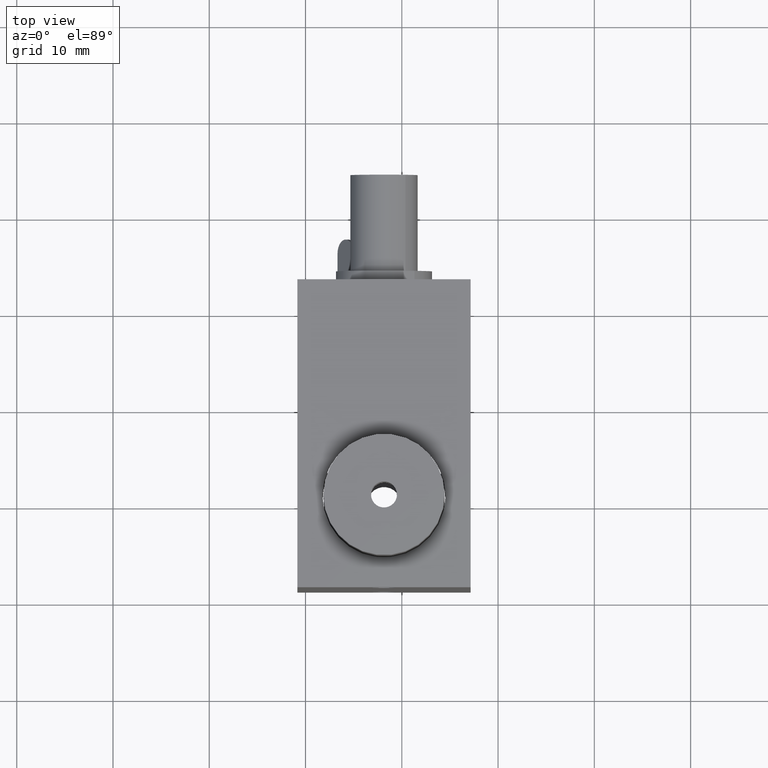
[diagram: clean part render]
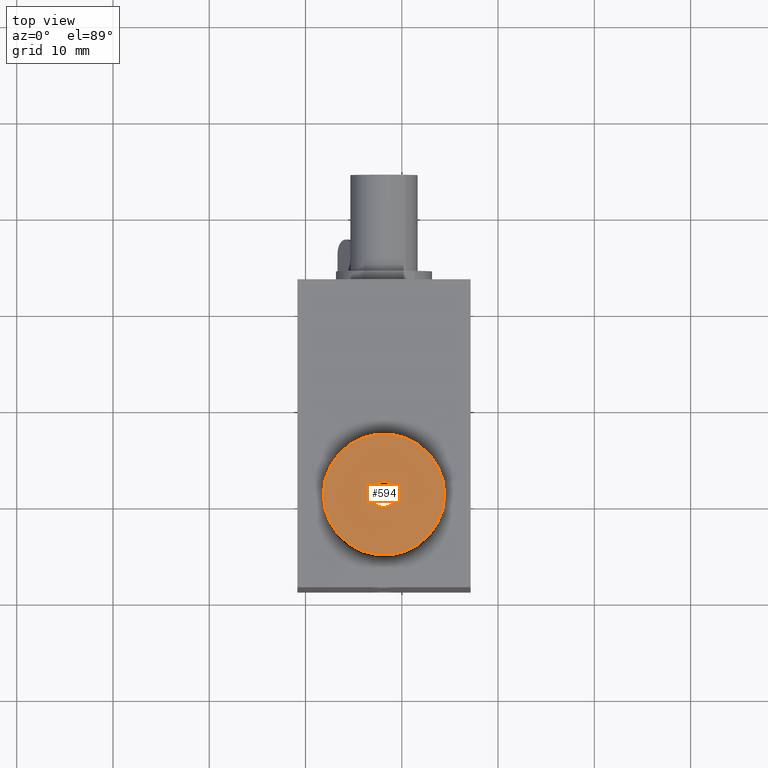
[diagram: same view with one face highlighted and labeled with its STEP entity id]
A machine part, top view. The second image highlights one B-rep face of the part: STEP entity #594.
In plain terms, the highlighted planar face has unit normal (0, 0, 1).
Its self-contained STEP definition (entity closure, byte-faithful):
#559 = VERTEX_POINT ( 'NONE', #3269 ) ;
#567 = VERTEX_POINT ( 'NONE', #3289 ) ;
#569 = EDGE_CURVE ( 'NONE', #570, #567, #3343, .T. ) ;
#570 = VERTEX_POINT ( 'NONE', #3338 ) ;
#594 = ADVANCED_FACE ( 'NONE', ( #3359, #3358 ), #3402, .T. ) ;
#595 = EDGE_LOOP ( 'NONE', ( #596, #598 ) ) ;
#596 = ORIENTED_EDGE ( 'NONE', *, *, #597, .F. ) ;
#597 = EDGE_CURVE ( 'NONE', #622, #559, #3396, .T. ) ;
#598 = ORIENTED_EDGE ( 'NONE', *, *, #621, .F. ) ;
#599 = EDGE_LOOP ( 'NONE', ( #600, #601 ) ) ;
#600 = ORIENTED_EDGE ( 'NONE', *, *, #569, .T. ) ;
#601 = ORIENTED_EDGE ( 'NONE', *, *, #613, .T. ) ;
#613 = EDGE_CURVE ( 'NONE', #567, #570, #3419, .T. ) ;
#621 = EDGE_CURVE ( 'NONE', #559, #622, #3433, .T. ) ;
#622 = VERTEX_POINT ( 'NONE', #3496 ) ;
#3269 = CARTESIAN_POINT ( 'NONE',  ( -3.201214688427299400, 0.4362017804154310100, 1.500700009777122500E-011 ) ) ;
#3289 = CARTESIAN_POINT ( 'NONE',  ( -8.148664688427301100, 0.4362017804154316200, 1.500709279067535800E-011 ) ) ;
#3338 = CARTESIAN_POINT ( 'NONE',  ( 4.451335311572700300, 0.4362017804154308400, 1.500709279067535800E-011 ) ) ;
#3339 = DIRECTION ( 'NONE',  ( 1.000000000000000000, 0.0000000000000000000, 0.0000000000000000000 ) ) ;
#3340 = DIRECTION ( 'NONE',  ( 0.0000000000000000000, 0.0000000000000000000, 1.000000000000000000 ) ) ;
#3341 = CARTESIAN_POINT ( 'NONE',  ( -1.848664688427300400, 0.4362017804154308400, 1.500709279067535800E-011 ) ) ;
#3342 = AXIS2_PLACEMENT_3D ( 'NONE', #3341, #3340, #3339 ) ;
#3343 = CIRCLE ( 'NONE', #3342, 6.300000000000000700 ) ;
#3358 = FACE_OUTER_BOUND ( 'NONE', #599, .T. ) ;
#3359 = FACE_BOUND ( 'NONE', #595, .T. ) ;
#3392 = DIRECTION ( 'NONE',  ( 1.000000000000000000, 0.0000000000000000000, 0.0000000000000000000 ) ) ;
#3393 = DIRECTION ( 'NONE',  ( 0.0000000000000000000, 0.0000000000000000000, 1.000000000000000000 ) ) ;
#3394 = CARTESIAN_POINT ( 'NONE',  ( -1.848664688427300400, 0.4362017804154308400, 1.500700009777122500E-011 ) ) ;
#3395 = AXIS2_PLACEMENT_3D ( 'NONE', #3394, #3393, #3392 ) ;
#3396 = CIRCLE ( 'NONE', #3395, 1.352549999999999300 ) ;
#3398 = DIRECTION ( 'NONE',  ( 1.000000000000000000, 0.0000000000000000000, 0.0000000000000000000 ) ) ;
#3399 = DIRECTION ( 'NONE',  ( 0.0000000000000000000, 0.0000000000000000000, 1.000000000000000000 ) ) ;
#3400 = CARTESIAN_POINT ( 'NONE',  ( -1.848664688427300400, 0.4362017804154308400, 1.500709279067535800E-011 ) ) ;
#3401 = AXIS2_PLACEMENT_3D ( 'NONE', #3400, #3399, #3398 ) ;
#3402 = PLANE ( 'NONE',  #3401 ) ;
#3415 = DIRECTION ( 'NONE',  ( 1.000000000000000000, 0.0000000000000000000, 0.0000000000000000000 ) ) ;
#3416 = DIRECTION ( 'NONE',  ( 0.0000000000000000000, 0.0000000000000000000, 1.000000000000000000 ) ) ;
#3417 = CARTESIAN_POINT ( 'NONE',  ( -1.848664688427300400, 0.4362017804154308400, 1.500709279067535800E-011 ) ) ;
#3418 = AXIS2_PLACEMENT_3D ( 'NONE', #3417, #3416, #3415 ) ;
#3419 = CIRCLE ( 'NONE', #3418, 6.300000000000000700 ) ;
#3433 = CIRCLE ( 'NONE', #3458, 1.352549999999999300 ) ;
#3455 = DIRECTION ( 'NONE',  ( 1.000000000000000000, 0.0000000000000000000, 0.0000000000000000000 ) ) ;
#3456 = DIRECTION ( 'NONE',  ( 0.0000000000000000000, 0.0000000000000000000, 1.000000000000000000 ) ) ;
#3457 = CARTESIAN_POINT ( 'NONE',  ( -1.848664688427300400, 0.4362017804154308400, 1.500700009777122500E-011 ) ) ;
#3458 = AXIS2_PLACEMENT_3D ( 'NONE', #3457, #3456, #3455 ) ;
#3496 = CARTESIAN_POINT ( 'NONE',  ( -0.4961146884273010500, 0.4362017804154308400, 1.500700009777122500E-011 ) ) ;